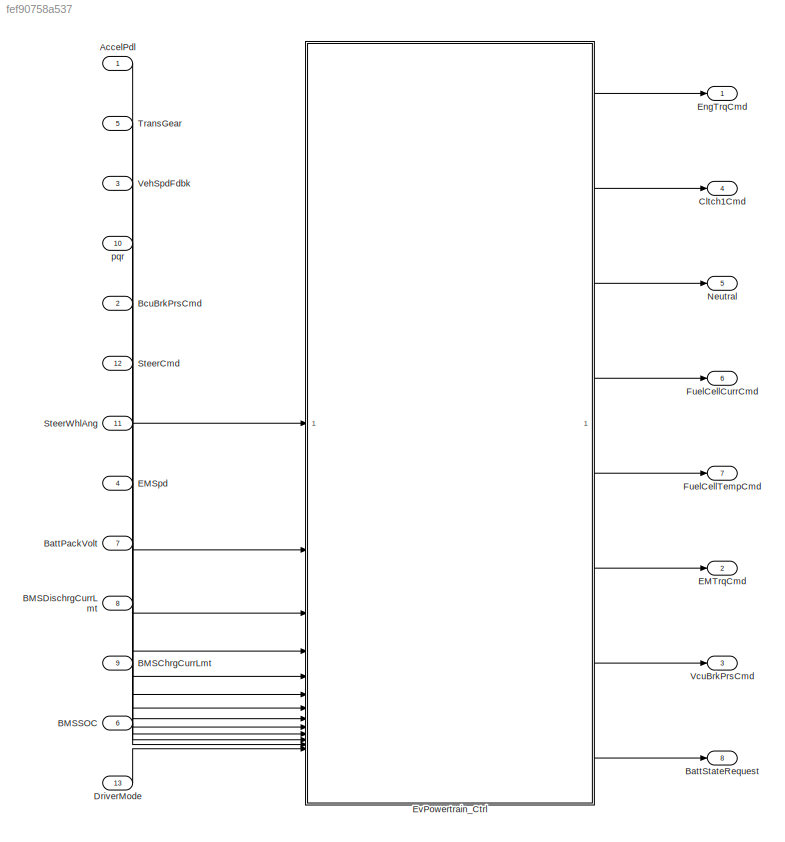
MODEL slx_fef90758a537
KIND model
WORKSPACE source: mxarray member
WORKSPACE CtrlVcuAccelPdlBpts = [0 0.8 1]
WORKSPACE CtrlVcuBattPnlty = 10000000
WORKSPACE CtrlVcuBattSOCBpts = [0 20 60 80 100]
WORKSPACE CtrlVcuCnstrntPnltyFctr = 10000000
WORKSPACE CtrlVcuEMPnlty = 100
WORKSPACE CtrlVcuEMTrqSplitGrid = 200
WORKSPACE CtrlVcuFallRate = -500
WORKSPACE CtrlVcuMaxAccelG = 1
WORKSPACE CtrlVcuMaxDecelG = -1.5
WORKSPACE CtrlVcuPwrDeltaPnlty = 50
WORKSPACE CtrlVcuPwrRatePnlty = [25 25 100]
WORKSPACE CtrlVcuRiseRate = 500
WORKSPACE CtrlVcuRoadMuEst = 0.8
WORKSPACE CtrlVcuSftyFctr = 0.9
WORKSPACE CtrlVcuTracPwrErrPnlty = 25
WORKSPACE CtrlVcuTrqVecBrkThresh = 0.01
WORKSPACE CtrlVcuTrqVecIGain = 0
WORKSPACE CtrlVcuTrqVecMinTrq = 25
WORKSPACE CtrlVcuTrqVecPGain = -2000
WORKSPACE CtrlVcuTrqVecSteerThresh = 0.349065850399
WORKSPACE CtrlVcuTrqVecVelThresh = 2.5
WORKSPACE N_P0 = 3
BLOCK [Inport] AccelPdl
  OutDataTypeStr = double
  PortDimensions = 1
BLOCK [Inport] BMSChrgCurrLmt
  Port = 9
BLOCK [Inport] BMSDischrgCurrLmt
  Port = 8
BLOCK [Inport] BMSSOC
  Port = 6
BLOCK [Inport] BattPackVolt
  Port = 7
BLOCK [Outport] BattStateRequest
  OutDataTypeStr = Enum: SRE
  Port = 8
  PortDimensions = 1
BLOCK [Inport] BcuBrkPrsCmd
  OutDataTypeStr = double
  Port = 2
  PortDimensions = 4
BLOCK [Outport] Cltch1Cmd
  OutDataTypeStr = double
  Port = 4
  PortDimensions = 1
  SamplingMode = Sample based
  SignalType = real
  VectorParamsAs1DForOutWhenUnconnected = off
BLOCK [Inport] DriverMode
  OutDataTypeStr = Enum: DriverMode
  Port = 13
BLOCK [Inport] EMSpd
  OutDataTypeStr = double
  Port = 4
BLOCK [Outport] EMTrqCmd
  OutDataTypeStr = double
  Port = 2
  VectorParamsAs1DForOutWhenUnconnected = off
BLOCK [Outport] EngTrqCmd
  OutDataTypeStr = double
  PortDimensions = 1
  SamplingMode = Sample based
  SignalType = real
  VectorParamsAs1DForOutWhenUnconnected = off
BLOCK [SubSystem] EvPowertrain_Ctrl
  ReferencedSubsystem = EvPowertrainController2EM_r3
BLOCK [Outport] FuelCellCurrCmd
  OutDataTypeStr = double
  Port = 6
  PortDimensions = 1
BLOCK [Outport] FuelCellTempCmd
  OutDataTypeStr = double
  Port = 7
  PortDimensions = 1
BLOCK [Outport] Neutral
  OutDataTypeStr = double
  Port = 5
  PortDimensions = 1
  SamplingMode = Sample based
  SignalType = real
  VectorParamsAs1DForOutWhenUnconnected = off
BLOCK [Inport] SteerCmd
  Port = 12
BLOCK [Inport] SteerWhlAng
  Port = 11
  PortDimensions = 4
BLOCK [Inport] TransGear
  OutDataTypeStr = double
  Port = 5
  PortDimensions = 1
  SamplingMode = Sample based
  SignalType = real
BLOCK [Outport] VcuBrkPrsCmd
  OutDataTypeStr = double
  Port = 3
  PortDimensions = 4
  VectorParamsAs1DForOutWhenUnconnected = off
BLOCK [Inport] VehSpdFdbk
  OutDataTypeStr = double
  Port = 3
  PortDimensions = 1
BLOCK [Inport] pqr
  Port = 10
  PortDimensions = 3
LINE AccelPdl:1 -> EvPowertrain_Ctrl:1
LINE BMSChrgCurrLmt:1 -> EvPowertrain_Ctrl:11
LINE BMSDischrgCurrLmt:1 -> EvPowertrain_Ctrl:10
LINE BMSSOC:1 -> EvPowertrain_Ctrl:12
LINE BattPackVolt:1 -> EvPowertrain_Ctrl:9
LINE BcuBrkPrsCmd:1 -> EvPowertrain_Ctrl:5
LINE DriverMode:1 -> EvPowertrain_Ctrl:13
LINE EMSpd:1 -> EvPowertrain_Ctrl:8
LINE EvPowertrain_Ctrl:1 -> EngTrqCmd:1
LINE EvPowertrain_Ctrl:2 -> Cltch1Cmd:1
LINE EvPowertrain_Ctrl:3 -> Neutral:1
LINE EvPowertrain_Ctrl:4 -> FuelCellCurrCmd:1
LINE EvPowertrain_Ctrl:5 -> FuelCellTempCmd:1
LINE EvPowertrain_Ctrl:6 -> EMTrqCmd:1
LINE EvPowertrain_Ctrl:7 -> VcuBrkPrsCmd:1
LINE EvPowertrain_Ctrl:8 -> BattStateRequest:1
LINE SteerCmd:1 -> EvPowertrain_Ctrl:6
LINE SteerWhlAng:1 -> EvPowertrain_Ctrl:7
LINE TransGear:1 -> EvPowertrain_Ctrl:2
LINE VehSpdFdbk:1 -> EvPowertrain_Ctrl:3
LINE pqr:1 -> EvPowertrain_Ctrl:4
